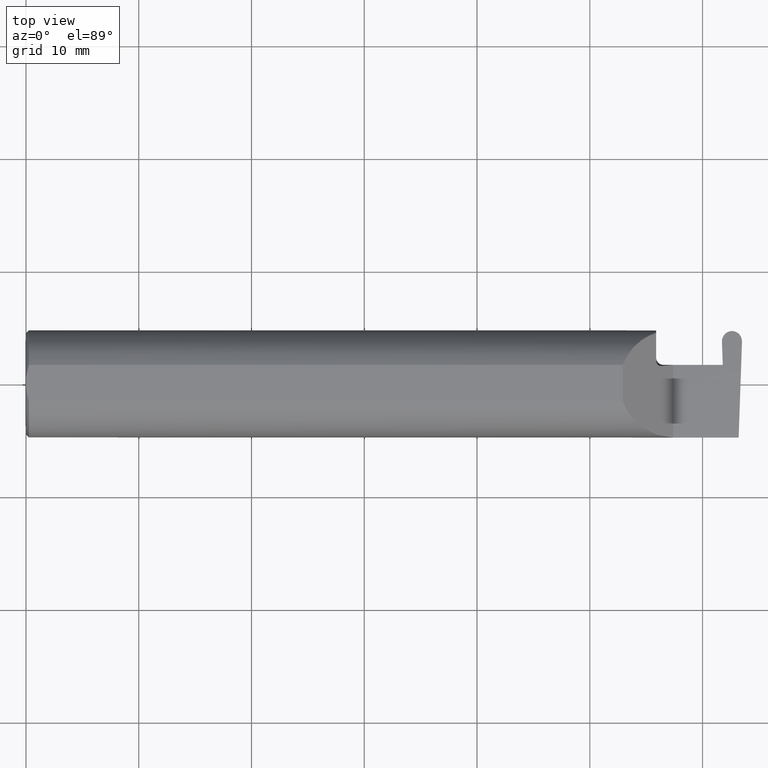
[diagram: clean part render]
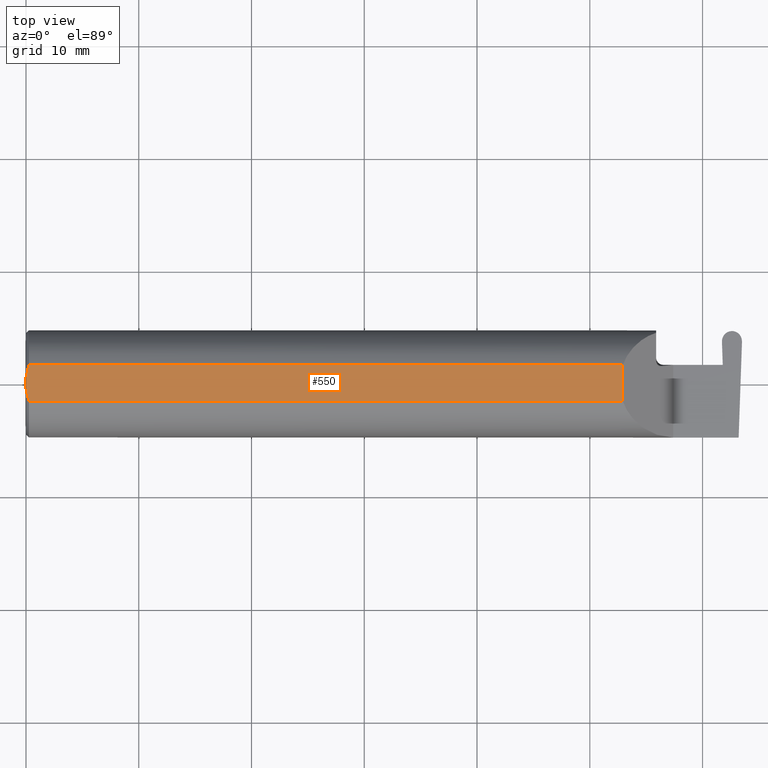
[diagram: same view with one face highlighted and labeled with its STEP entity id]
A machine part, top view. The second image highlights one B-rep face of the part: STEP entity #550.
In plain terms, the highlighted planar face has unit normal (0, 0, 1).
Its self-contained STEP definition (entity closure, byte-faithful):
#32 = VECTOR ( 'NONE', #312, 39.37007874015748143 ) ;
#34 = PLANE ( 'NONE',  #174 ) ;
#58 = DIRECTION ( 'NONE',  ( 0.000000000000000000, 1.000000000000000000, 0.000000000000000000 ) ) ;
#71 = CARTESIAN_POINT ( 'NONE',  ( 0.005151108632379595466, -0.04888864921576189376, 0.1763499999999999235 ) ) ;
#74 = LINE ( 'NONE', #508, #124 ) ;
#85 = CARTESIAN_POINT ( 'NONE',  ( 0.000000000000000000, 0.01880691362239451242, 0.1763499999999999235 ) ) ;
#86 = ORIENTED_EDGE ( 'NONE', *, *, #255, .T. ) ;
#117 = VERTEX_POINT ( 'NONE', #202 ) ;
#124 = VECTOR ( 'NONE', #659, 39.37007874015748143 ) ;
#136 = LINE ( 'NONE', #309, #32 ) ;
#161 = VERTEX_POINT ( 'NONE', #268 ) ;
#172 = VERTEX_POINT ( 'NONE', #693 ) ;
#174 = AXIS2_PLACEMENT_3D ( 'NONE', #579, #316, #636 ) ;
#192 = EDGE_CURVE ( 'NONE', #534, #161, #274, .T. ) ;
#202 = CARTESIAN_POINT ( 'NONE',  ( 0.000000000000000000, -0.01880691362239451242, 0.1763499999999999235 ) ) ;
#221 = ORIENTED_EDGE ( 'NONE', *, *, #192, .F. ) ;
#252 = CARTESIAN_POINT ( 'NONE',  ( 0.005155213631852355663, 0.04890080824240217866, 0.1763499999999999235 ) ) ;
#255 = EDGE_CURVE ( 'NONE', #172, #486, #379, .T. ) ;
#259 = VECTOR ( 'NONE', #58, 39.37007874015748143 ) ;
#265 = EDGE_CURVE ( 'NONE', #486, #161, #333, .T. ) ;
#268 = CARTESIAN_POINT ( 'NONE',  ( 0.009999999999999346217, 0.06325108694718235836, 0.1763499999999999235 ) ) ;
#274 = B_SPLINE_CURVE_WITH_KNOTS ( 'NONE', 3,
 ( #85, #592, #252, #637 ),
 .UNSPECIFIED., .F., .F.,
 ( 4, 4 ),
 ( 0.01188664626022267051, 0.01304646959483758001 ),
 .UNSPECIFIED. ) ;
#292 = ORIENTED_EDGE ( 'NONE', *, *, #370, .F. ) ;
#301 = CARTESIAN_POINT ( 'NONE',  ( 0.009999999999999346217, -0.06325108694718235836, 0.1763499999999999235 ) ) ;
#309 = CARTESIAN_POINT ( 'NONE',  ( 0.000000000000000000, -0.06325108694718235836, 0.1763499999999999235 ) ) ;
#312 = DIRECTION ( 'NONE',  ( 1.000000000000000000, 0.000000000000000000, 0.000000000000000000 ) ) ;
#316 = DIRECTION ( 'NONE',  ( 0.000000000000000000, 0.000000000000000000, 1.000000000000000000 ) ) ;
#330 = ORIENTED_EDGE ( 'NONE', *, *, #431, .F. ) ;
#333 = LINE ( 'NONE', #548, #434 ) ;
#353 = CARTESIAN_POINT ( 'NONE',  ( 0.000000000000000000, -0.01880691362239451242, 0.1763499999999999235 ) ) ;
#370 = EDGE_CURVE ( 'NONE', #117, #534, #74, .T. ) ;
#379 = LINE ( 'NONE', #544, #259 ) ;
#380 = VERTEX_POINT ( 'NONE', #301 ) ;
#387 = ORIENTED_EDGE ( 'NONE', *, *, #265, .T. ) ;
#405 = B_SPLINE_CURVE_WITH_KNOTS ( 'NONE', 3,
 ( #670, #71, #564, #353 ),
 .UNSPECIFIED., .F., .F.,
 ( 4, 4 ),
 ( 0.009771445421851449736, 0.01092787937989102981 ),
 .UNSPECIFIED. ) ;
#431 = EDGE_CURVE ( 'NONE', #380, #117, #405, .T. ) ;
#434 = VECTOR ( 'NONE', #493, 39.37007874015748143 ) ;
#486 = VERTEX_POINT ( 'NONE', #516 ) ;
#490 = EDGE_LOOP ( 'NONE', ( #668, #86, #387, #221, #292, #330 ) ) ;
#493 = DIRECTION ( 'NONE',  ( -1.000000000000000000, -0.000000000000000000, -0.000000000000000000 ) ) ;
#508 = CARTESIAN_POINT ( 'NONE',  ( 0.000000000000000000, 0.1873499999999998500, 0.1763499999999999235 ) ) ;
#516 = CARTESIAN_POINT ( 'NONE',  ( 2.083649999999998670, 0.06325108694718283020, 0.1763499999999999235 ) ) ;
#534 = VERTEX_POINT ( 'NONE', #633 ) ;
#544 = CARTESIAN_POINT ( 'NONE',  ( 2.083649999999998670, -0.2500000000000000555, 0.1763499999999999235 ) ) ;
#548 = CARTESIAN_POINT ( 'NONE',  ( 0.000000000000000000, 0.06325108694718235836, 0.1763499999999999235 ) ) ;
#550 = ADVANCED_FACE ( 'NONE', ( #587 ), #34, .T. ) ;
#564 = CARTESIAN_POINT ( 'NONE',  ( 0.001595548104417217512, -0.03385300050298979679, 0.1763499999999999235 ) ) ;
#572 = EDGE_CURVE ( 'NONE', #380, #172, #136, .T. ) ;
#579 = CARTESIAN_POINT ( 'NONE',  ( 2.876828993045917215, 0.1873499999999998500, 0.1763499999999999235 ) ) ;
#587 = FACE_OUTER_BOUND ( 'NONE', #490, .T. ) ;
#592 = CARTESIAN_POINT ( 'NONE',  ( 0.001616639753276218755, 0.03405189565400963680, 0.1763499999999999235 ) ) ;
#633 = CARTESIAN_POINT ( 'NONE',  ( 0.000000000000000000, 0.01880691362239451242, 0.1763499999999999235 ) ) ;
#636 = DIRECTION ( 'NONE',  ( 1.000000000000000000, 0.000000000000000000, -0.000000000000000000 ) ) ;
#637 = CARTESIAN_POINT ( 'NONE',  ( 0.009999999999999346217, 0.06325108694718235836, 0.1763499999999999235 ) ) ;
#659 = DIRECTION ( 'NONE',  ( -0.000000000000000000, 1.000000000000000000, -0.000000000000000000 ) ) ;
#668 = ORIENTED_EDGE ( 'NONE', *, *, #572, .T. ) ;
#670 = CARTESIAN_POINT ( 'NONE',  ( 0.009999999999999346217, -0.06325108694718235836, 0.1763499999999999235 ) ) ;
#693 = CARTESIAN_POINT ( 'NONE',  ( 2.083649999999998670, -0.06325108694718283020, 0.1763499999999999235 ) ) ;